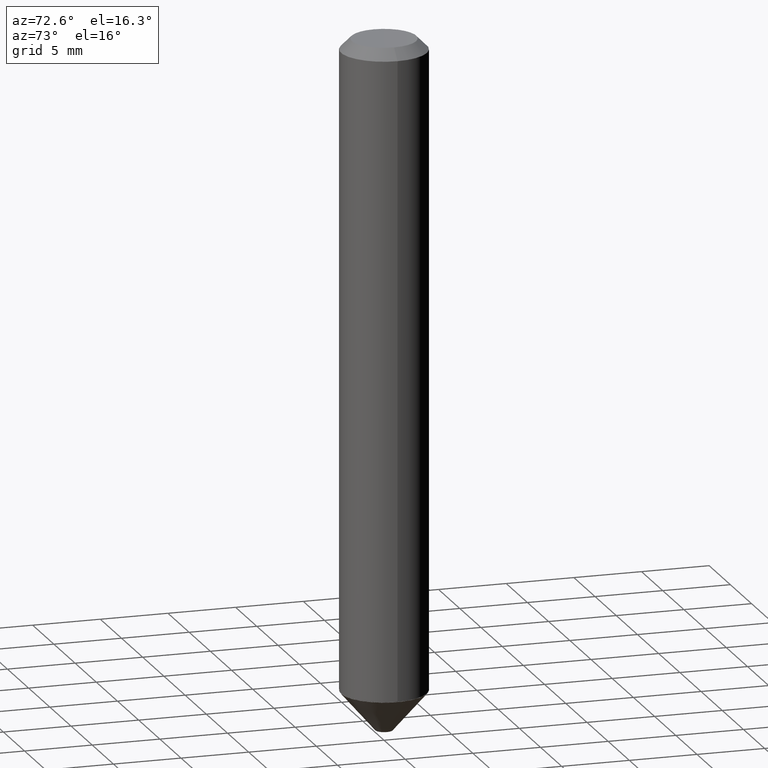
[diagram: clean part render]
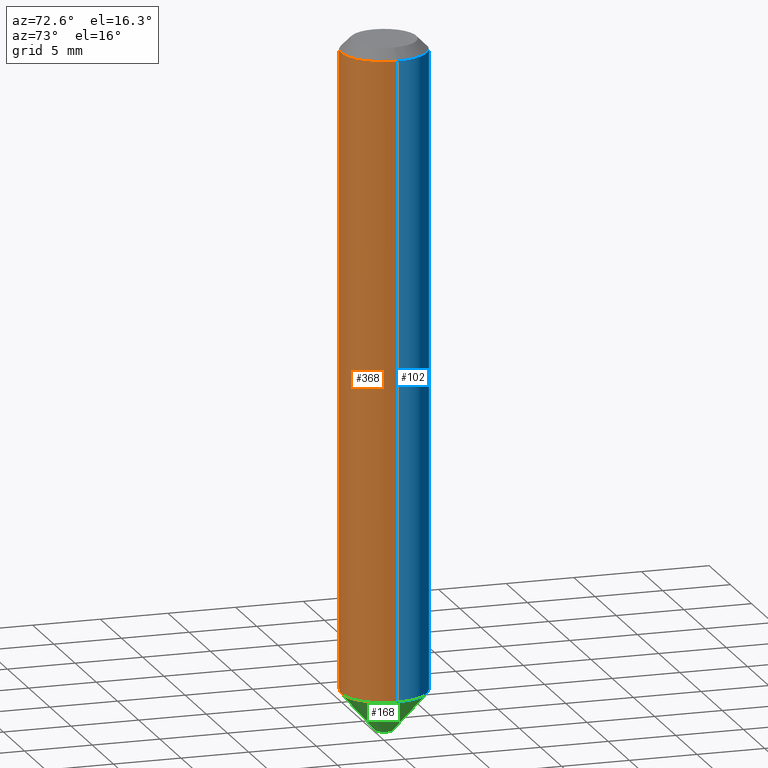
[diagram: same view with three faces highlighted in distinct colors, each labeled with its STEP entity id]
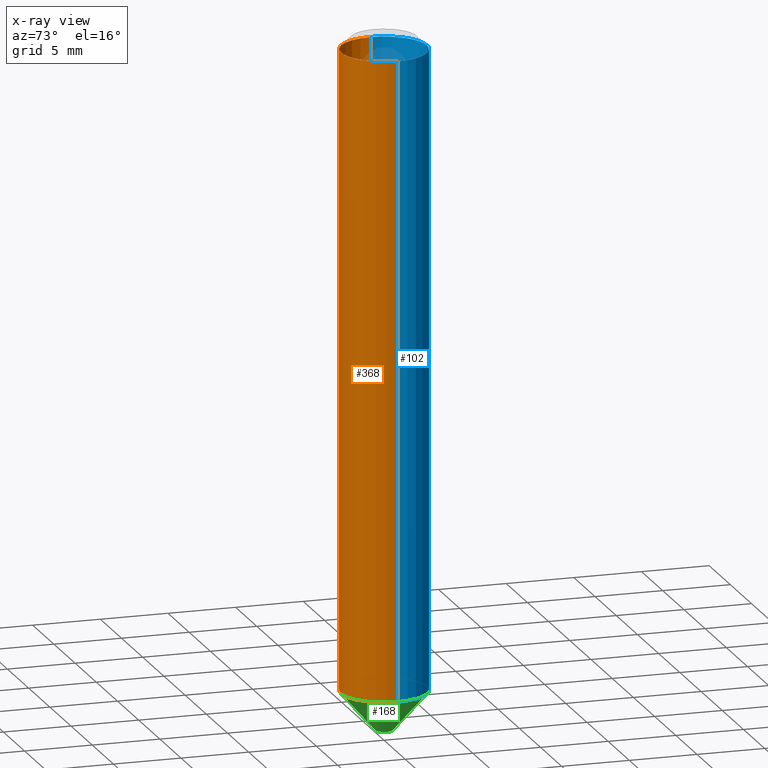
[diagram: x-ray of the same camera — body ghosted, the three highlighted faces saturated]
A machine part, auxiliary view with three faces highlighted in distinct colors.
The next image is the same camera in x-ray (body ghosted, the three faces saturated) — at least one of them is partly hidden behind the body in this view.
Their STEP definitions:

[orange] entity #368 — the highlighted cylindrical surface (partial cylindrical patch) has radius 3.175 mm, axis along (-0, 0, 1).
#5 = CIRCLE ( 'NONE', #374, 0.1250000000000002498 ) ;
#13 = DIRECTION ( 'NONE',  ( -2.445468806185136877E-29, 3.491481338843145188E-15, 1.000000000000000000 ) ) ;
#33 = VERTEX_POINT ( 'NONE', #292 ) ;
#37 = DIRECTION ( 'NONE',  ( -2.445468806185136877E-29, 3.491481338843145188E-15, 1.000000000000000000 ) ) ;
#59 = AXIS2_PLACEMENT_3D ( 'NONE', #231, #406, #99 ) ;
#60 = EDGE_CURVE ( 'NONE', #361, #187, #398, .T. ) ;
#72 = ORIENTED_EDGE ( 'NONE', *, *, #205, .T. ) ;
#75 = LINE ( 'NONE', #227, #119 ) ;
#92 = DIRECTION ( 'NONE',  ( 1.000000000000000000, -6.982962677686265922E-15, 0.000000000000000000 ) ) ;
#99 = DIRECTION ( 'NONE',  ( 1.000000000000000000, -6.982962677686266711E-15, 4.876176775795935793E-29 ) ) ;
#105 = FACE_OUTER_BOUND ( 'NONE', #201, .T. ) ;
#119 = VECTOR ( 'NONE', #37, 39.37007874015748143 ) ;
#167 = CARTESIAN_POINT ( 'NONE',  ( -0.1250000000000001388, 8.881784197001262184E-16, -6.148668862818638533E-30 ) ) ;
#173 = ORIENTED_EDGE ( 'NONE', *, *, #342, .F. ) ;
#187 = VERTEX_POINT ( 'NONE', #207 ) ;
#190 = ORIENTED_EDGE ( 'NONE', *, *, #60, .F. ) ;
#201 = EDGE_LOOP ( 'NONE', ( #190, #72, #393, #173 ) ) ;
#205 = EDGE_CURVE ( 'NONE', #361, #230, #5, .T. ) ;
#207 = CARTESIAN_POINT ( 'NONE',  ( -0.1250000000000000278, -2.456301073605589250E-15, -0.03125000000000022898 ) ) ;
#210 = AXIS2_PLACEMENT_3D ( 'NONE', #262, #391, #92 ) ;
#218 = VECTOR ( 'NONE', #13, 39.37007874015748143 ) ;
#227 = CARTESIAN_POINT ( 'NONE',  ( 0.1250000000000001388, -8.728703347107843249E-16, 6.095220969744926748E-30 ) ) ;
#230 = VERTEX_POINT ( 'NONE', #271 ) ;
#231 = CARTESIAN_POINT ( 'NONE',  ( 0.000000000000000000, 0.000000000000000000, 0.000000000000000000 ) ) ;
#244 = DIRECTION ( 'NONE',  ( 1.000000000000000000, -6.982962677686264344E-15, 0.000000000000000000 ) ) ;
#262 = CARTESIAN_POINT ( 'NONE',  ( 7.642090019328607041E-31, -1.091087918388490883E-16, -0.03125000000000022898 ) ) ;
#264 = CARTESIAN_POINT ( 'NONE',  ( -0.1250000000000002498, -5.691671775072456998E-15, -1.884543996145982003 ) ) ;
#265 = EDGE_CURVE ( 'NONE', #230, #33, #75, .T. ) ;
#271 = CARTESIAN_POINT ( 'NONE',  ( 0.1250000000000002498, -7.452720529483370303E-15, -1.884543996145982003 ) ) ;
#279 = CYLINDRICAL_SURFACE ( 'NONE', #59, 0.1250000000000001388 ) ;
#292 = CARTESIAN_POINT ( 'NONE',  ( 0.1250000000000000278, -9.819791265496326367E-16, -0.03125000000000022898 ) ) ;
#342 = EDGE_CURVE ( 'NONE', #187, #33, #404, .T. ) ;
#361 = VERTEX_POINT ( 'NONE', #264 ) ;
#368 = ADVANCED_FACE ( 'NONE', ( #105 ), #279, .T. ) ;
#372 = DIRECTION ( 'NONE',  ( -2.445468806185136597E-29, 3.491481338843145583E-15, 1.000000000000000000 ) ) ;
#374 = AXIS2_PLACEMENT_3D ( 'NONE', #405, #372, #244 ) ;
#391 = DIRECTION ( 'NONE',  ( -2.445468806185136597E-29, 3.491481338843145583E-15, 1.000000000000000000 ) ) ;
#393 = ORIENTED_EDGE ( 'NONE', *, *, #265, .T. ) ;
#398 = LINE ( 'NONE', #167, #218 ) ;
#404 = CIRCLE ( 'NONE', #210, 0.1250000000000000278 ) ;
#405 = CARTESIAN_POINT ( 'NONE',  ( 4.608593556458481518E-29, -6.579850194772584597E-15, -1.884543996145982003 ) ) ;
#406 = DIRECTION ( 'NONE',  ( -2.445468806185136597E-29, 3.491481338843145583E-15, 1.000000000000000000 ) ) ;

[blue] entity #102 — the highlighted cylindrical surface (partial cylindrical patch) has radius 3.175 mm, axis along (-0, 0, 1).
#13 = DIRECTION ( 'NONE',  ( -2.445468806185136877E-29, 3.491481338843145188E-15, 1.000000000000000000 ) ) ;
#19 = DIRECTION ( 'NONE',  ( 1.000000000000000000, -6.982962677686264344E-15, 0.000000000000000000 ) ) ;
#33 = VERTEX_POINT ( 'NONE', #292 ) ;
#37 = DIRECTION ( 'NONE',  ( -2.445468806185136877E-29, 3.491481338843145188E-15, 1.000000000000000000 ) ) ;
#48 = CARTESIAN_POINT ( 'NONE',  ( 0.000000000000000000, 0.000000000000000000, 0.000000000000000000 ) ) ;
#60 = EDGE_CURVE ( 'NONE', #361, #187, #398, .T. ) ;
#65 = CIRCLE ( 'NONE', #90, 0.1250000000000000278 ) ;
#66 = ORIENTED_EDGE ( 'NONE', *, *, #211, .F. ) ;
#75 = LINE ( 'NONE', #227, #119 ) ;
#79 = CIRCLE ( 'NONE', #132, 0.1250000000000002498 ) ;
#85 = ORIENTED_EDGE ( 'NONE', *, *, #265, .F. ) ;
#90 = AXIS2_PLACEMENT_3D ( 'NONE', #306, #378, #179 ) ;
#102 = ADVANCED_FACE ( 'NONE', ( #275 ), #138, .T. ) ;
#119 = VECTOR ( 'NONE', #37, 39.37007874015748143 ) ;
#132 = AXIS2_PLACEMENT_3D ( 'NONE', #339, #310, #19 ) ;
#135 = EDGE_CURVE ( 'NONE', #230, #361, #79, .T. ) ;
#138 = CYLINDRICAL_SURFACE ( 'NONE', #331, 0.1250000000000001388 ) ;
#167 = CARTESIAN_POINT ( 'NONE',  ( -0.1250000000000001388, 8.881784197001262184E-16, -6.148668862818638533E-30 ) ) ;
#179 = DIRECTION ( 'NONE',  ( 1.000000000000000000, -6.982962677686265922E-15, 0.000000000000000000 ) ) ;
#187 = VERTEX_POINT ( 'NONE', #207 ) ;
#207 = CARTESIAN_POINT ( 'NONE',  ( -0.1250000000000000278, -2.456301073605589250E-15, -0.03125000000000022898 ) ) ;
#211 = EDGE_CURVE ( 'NONE', #33, #187, #65, .T. ) ;
#218 = VECTOR ( 'NONE', #13, 39.37007874015748143 ) ;
#227 = CARTESIAN_POINT ( 'NONE',  ( 0.1250000000000001388, -8.728703347107843249E-16, 6.095220969744926748E-30 ) ) ;
#230 = VERTEX_POINT ( 'NONE', #271 ) ;
#264 = CARTESIAN_POINT ( 'NONE',  ( -0.1250000000000002498, -5.691671775072456998E-15, -1.884543996145982003 ) ) ;
#265 = EDGE_CURVE ( 'NONE', #230, #33, #75, .T. ) ;
#271 = CARTESIAN_POINT ( 'NONE',  ( 0.1250000000000002498, -7.452720529483370303E-15, -1.884543996145982003 ) ) ;
#275 = FACE_OUTER_BOUND ( 'NONE', #313, .T. ) ;
#287 = ORIENTED_EDGE ( 'NONE', *, *, #60, .T. ) ;
#292 = CARTESIAN_POINT ( 'NONE',  ( 0.1250000000000000278, -9.819791265496326367E-16, -0.03125000000000022898 ) ) ;
#306 = CARTESIAN_POINT ( 'NONE',  ( 7.642090019328607041E-31, -1.091087918388490883E-16, -0.03125000000000022898 ) ) ;
#310 = DIRECTION ( 'NONE',  ( -2.445468806185136597E-29, 3.491481338843145583E-15, 1.000000000000000000 ) ) ;
#313 = EDGE_LOOP ( 'NONE', ( #323, #287, #66, #85 ) ) ;
#323 = ORIENTED_EDGE ( 'NONE', *, *, #135, .T. ) ;
#331 = AXIS2_PLACEMENT_3D ( 'NONE', #48, #347, #409 ) ;
#339 = CARTESIAN_POINT ( 'NONE',  ( 4.608593556458481518E-29, -6.579850194772584597E-15, -1.884543996145982003 ) ) ;
#347 = DIRECTION ( 'NONE',  ( -2.445468806185136597E-29, 3.491481338843145583E-15, 1.000000000000000000 ) ) ;
#361 = VERTEX_POINT ( 'NONE', #264 ) ;
#378 = DIRECTION ( 'NONE',  ( -2.445468806185136597E-29, 3.491481338843145583E-15, 1.000000000000000000 ) ) ;
#398 = LINE ( 'NONE', #167, #218 ) ;
#409 = DIRECTION ( 'NONE',  ( 1.000000000000000000, -6.982962677686266711E-15, 4.876176775795935793E-29 ) ) ;

[green] entity #168 — the highlighted conical surface has half-angle 41.144 deg.
#10 = ORIENTED_EDGE ( 'NONE', *, *, #189, .F. ) ;
#20 = CARTESIAN_POINT ( 'NONE',  ( -8.728703347107393598E-16, -0.1250000000000068834, -1.885543996145981227 ) ) ;
#23 = VERTEX_POINT ( 'NONE', #366 ) ;
#38 = ORIENTED_EDGE ( 'NONE', *, *, #128, .T. ) ;
#43 = ORIENTED_EDGE ( 'NONE', *, *, #69, .T. ) ;
#49 = LINE ( 'NONE', #20, #408 ) ;
#54 = ORIENTED_EDGE ( 'NONE', *, *, #83, .F. ) ;
#69 = EDGE_CURVE ( 'NONE', #23, #315, #268, .T. ) ;
#71 = CARTESIAN_POINT ( 'NONE',  ( -8.575622497213981566E-16, -0.1250000000000069944, -1.885543996145981227 ) ) ;
#80 = DIRECTION ( 'NONE',  ( 6.982962677686265133E-15, 1.000000000000000000, 0.000000000000000000 ) ) ;
#83 = EDGE_CURVE ( 'NONE', #23, #285, #356, .T. ) ;
#111 = CARTESIAN_POINT ( 'NONE',  ( 4.611044690453673152E-29, -6.583333563238326650E-15, -1.885543996145981671 ) ) ;
#128 = EDGE_CURVE ( 'NONE', #315, #198, #155, .T. ) ;
#155 = CIRCLE ( 'NONE', #209, 0.1250000000000003053 ) ;
#166 = AXIS2_PLACEMENT_3D ( 'NONE', #111, #241, #233 ) ;
#168 = ADVANCED_FACE ( 'NONE', ( #375 ), #355, .T. ) ;
#172 = DIRECTION ( 'NONE',  ( 6.982962677686265922E-15, 1.000000000000000000, -4.370956789862810105E-15 ) ) ;
#178 = DIRECTION ( 'NONE',  ( 2.456799184199791959E-29, -3.475255592641091320E-15, -1.000000000000000000 ) ) ;
#189 = EDGE_CURVE ( 'NONE', #285, #198, #49, .T. ) ;
#198 = VERTEX_POINT ( 'NONE', #71 ) ;
#202 = CARTESIAN_POINT ( 'NONE',  ( 4.611044690453673152E-29, -6.583333563238326650E-15, -1.885543996145981671 ) ) ;
#209 = AXIS2_PLACEMENT_3D ( 'NONE', #202, #178, #172 ) ;
#224 = CARTESIAN_POINT ( 'NONE',  ( 4.892240107348993741E-29, -6.981097430743353343E-15, -2.000000000000000000 ) ) ;
#229 = DIRECTION ( 'NONE',  ( 2.456799184199791959E-29, -3.475255592641091320E-15, -1.000000000000000000 ) ) ;
#233 = DIRECTION ( 'NONE',  ( -6.982962677686265922E-15, -1.000000000000000000, 4.370956789862810105E-15 ) ) ;
#241 = DIRECTION ( 'NONE',  ( -2.456799184199791959E-29, 3.475255592641091320E-15, 1.000000000000000000 ) ) ;
#243 = VECTOR ( 'NONE', #273, 39.37007874015748143 ) ;
#252 = CARTESIAN_POINT ( 'NONE',  ( 8.728703347108306705E-16, 0.1249999999999936162, -1.885543996145982337 ) ) ;
#268 = LINE ( 'NONE', #399, #243 ) ;
#273 = DIRECTION ( 'NONE',  ( 4.675010081021729684E-15, 0.6579491768388420203, 0.7530623352001414306 ) ) ;
#282 = DIRECTION ( 'NONE',  ( -4.594434545680034351E-15, -0.6579491768388366912, 0.7530623352001460935 ) ) ;
#285 = VERTEX_POINT ( 'NONE', #286 ) ;
#286 = CARTESIAN_POINT ( 'NONE',  ( -5.237222008264251368E-16, -0.02500000000000739825, -2.000000000000000000 ) ) ;
#315 = VERTEX_POINT ( 'NONE', #252 ) ;
#355 = CONICAL_SURFACE ( 'NONE', #166, 0.1250000000000003053, 0.7180921986036510329 ) ;
#356 = CIRCLE ( 'NONE', #396, 0.02500000000000041772 ) ;
#366 = CARTESIAN_POINT ( 'NONE',  ( 5.329070518201253110E-16, 0.02499999999999344066, -2.000000000000000000 ) ) ;
#375 = FACE_OUTER_BOUND ( 'NONE', #390, .T. ) ;
#390 = EDGE_LOOP ( 'NONE', ( #54, #43, #38, #10 ) ) ;
#396 = AXIS2_PLACEMENT_3D ( 'NONE', #224, #229, #80 ) ;
#399 = CARTESIAN_POINT ( 'NONE',  ( 8.881784197001733529E-16, 0.1249999999999937134, -1.885543996145982337 ) ) ;
#408 = VECTOR ( 'NONE', #282, 39.37007874015748143 ) ;